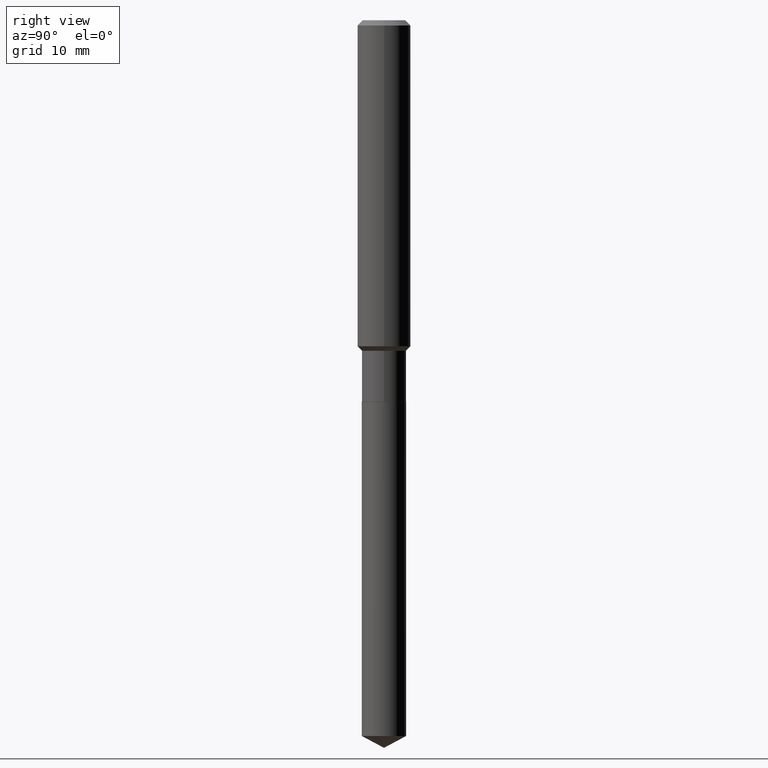
[diagram: clean part render]
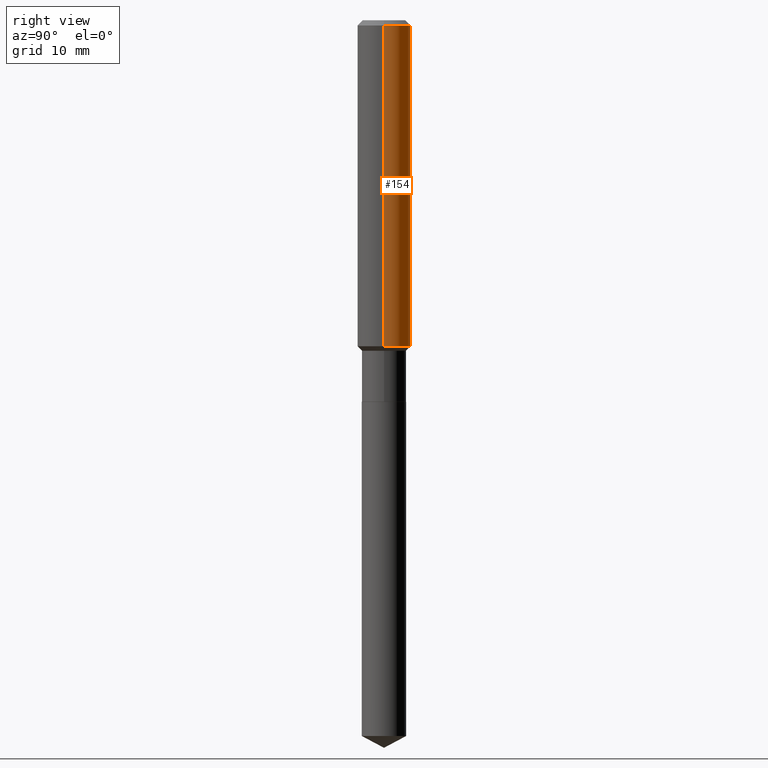
[diagram: same view with one face highlighted and labeled with its STEP entity id]
A machine part, right view. The second image highlights one B-rep face of the part: STEP entity #154.
In plain terms, the highlighted cylindrical surface (edge-blend (fillet) strip) has radius 2.9997 mm, axis along (-0, 0, 1).
Its self-contained STEP definition (entity closure, byte-faithful):
#24 = VECTOR ( 'NONE', #388, 39.37007874015748143 ) ;
#26 = VERTEX_POINT ( 'NONE', #449 ) ;
#51 = CARTESIAN_POINT ( 'NONE',  ( 3.538226542228964985E-29, -5.051649775105204853E-15, -1.446849999999999969 ) ) ;
#54 = DIRECTION ( 'NONE',  ( -2.445468806185136597E-29, 3.491481338843145583E-15, 1.000000000000000000 ) ) ;
#82 = FACE_OUTER_BOUND ( 'NONE', #356, .T. ) ;
#85 = CARTESIAN_POINT ( 'NONE',  ( -0.1181000000000000799, 8.391509709326788873E-16, -5.809262341591047988E-30 ) ) ;
#91 = ORIENTED_EDGE ( 'NONE', *, *, #334, .T. ) ;
#95 = CARTESIAN_POINT ( 'NONE',  ( 0.1181000000000000799, -8.246878922347486570E-16, 5.758764772215004644E-30 ) ) ;
#97 = CARTESIAN_POINT ( 'NONE',  ( 5.776197320209327532E-31, -8.246878922347559293E-17, -0.02362000000000014088 ) ) ;
#126 = VERTEX_POINT ( 'NONE', #153 ) ;
#128 = DIRECTION ( 'NONE',  ( 1.000000000000000000, -6.982962677686270655E-15, 0.000000000000000000 ) ) ;
#153 = CARTESIAN_POINT ( 'NONE',  ( 0.1181000000000001632, -5.876337667339954694E-15, -1.446849999999999969 ) ) ;
#154 = ADVANCED_FACE ( 'NONE', ( #82 ), #264, .T. ) ;
#168 = VERTEX_POINT ( 'NONE', #384 ) ;
#218 = EDGE_CURVE ( 'NONE', #168, #26, #270, .T. ) ;
#226 = DIRECTION ( 'NONE',  ( -2.445468806185136597E-29, 3.491481338843145583E-15, 1.000000000000000000 ) ) ;
#232 = CARTESIAN_POINT ( 'NONE',  ( 0.1180999999999999966, -9.071566814582237199E-16, -0.02362000000000014088 ) ) ;
#235 = ORIENTED_EDGE ( 'NONE', *, *, #218, .T. ) ;
#262 = CIRCLE ( 'NONE', #378, 0.1180999999999999966 ) ;
#264 = CYLINDRICAL_SURFACE ( 'NONE', #469, 0.1181000000000000799 ) ;
#270 = LINE ( 'NONE', #85, #24 ) ;
#283 = DIRECTION ( 'NONE',  ( -2.445468806185136597E-29, 3.491481338843145583E-15, 1.000000000000000000 ) ) ;
#299 = DIRECTION ( 'NONE',  ( 1.000000000000000000, -6.982962677686266711E-15, 4.876176775795936353E-29 ) ) ;
#303 = AXIS2_PLACEMENT_3D ( 'NONE', #51, #54, #128 ) ;
#308 = CIRCLE ( 'NONE', #303, 0.1181000000000001632 ) ;
#313 = ORIENTED_EDGE ( 'NONE', *, *, #324, .F. ) ;
#318 = LINE ( 'NONE', #95, #412 ) ;
#324 = EDGE_CURVE ( 'NONE', #126, #437, #318, .T. ) ;
#334 = EDGE_CURVE ( 'NONE', #126, #168, #308, .T. ) ;
#354 = EDGE_CURVE ( 'NONE', #437, #26, #262, .T. ) ;
#356 = EDGE_LOOP ( 'NONE', ( #91, #235, #374, #313 ) ) ;
#374 = ORIENTED_EDGE ( 'NONE', *, *, #354, .F. ) ;
#378 = AXIS2_PLACEMENT_3D ( 'NONE', #97, #283, #436 ) ;
#384 = CARTESIAN_POINT ( 'NONE',  ( -0.1181000000000001632, -4.212498804172525078E-15, -1.446849999999999969 ) ) ;
#388 = DIRECTION ( 'NONE',  ( -2.445468806185136877E-29, 3.491481338843145188E-15, 1.000000000000000000 ) ) ;
#412 = VECTOR ( 'NONE', #434, 39.37007874015748143 ) ;
#434 = DIRECTION ( 'NONE',  ( -2.445468806185136877E-29, 3.491481338843145188E-15, 1.000000000000000000 ) ) ;
#436 = DIRECTION ( 'NONE',  ( 1.000000000000000000, -6.982962677686266711E-15, 0.000000000000000000 ) ) ;
#437 = VERTEX_POINT ( 'NONE', #232 ) ;
#449 = CARTESIAN_POINT ( 'NONE',  ( -0.1180999999999999966, -1.727908311231660578E-15, -0.02362000000000014088 ) ) ;
#456 = CARTESIAN_POINT ( 'NONE',  ( 0.000000000000000000, 0.000000000000000000, 0.000000000000000000 ) ) ;
#469 = AXIS2_PLACEMENT_3D ( 'NONE', #456, #226, #299 ) ;